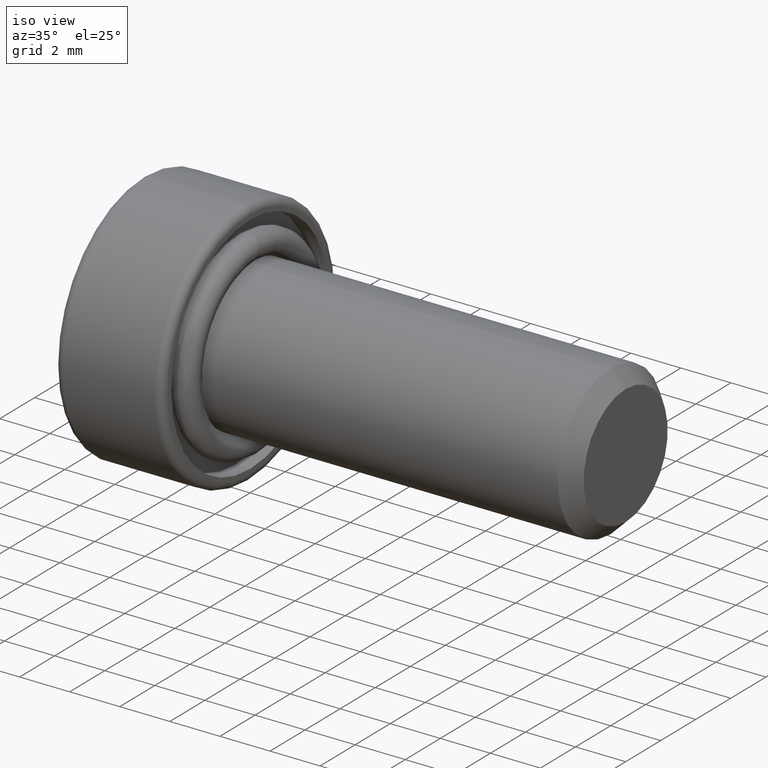
[diagram: clean part render]
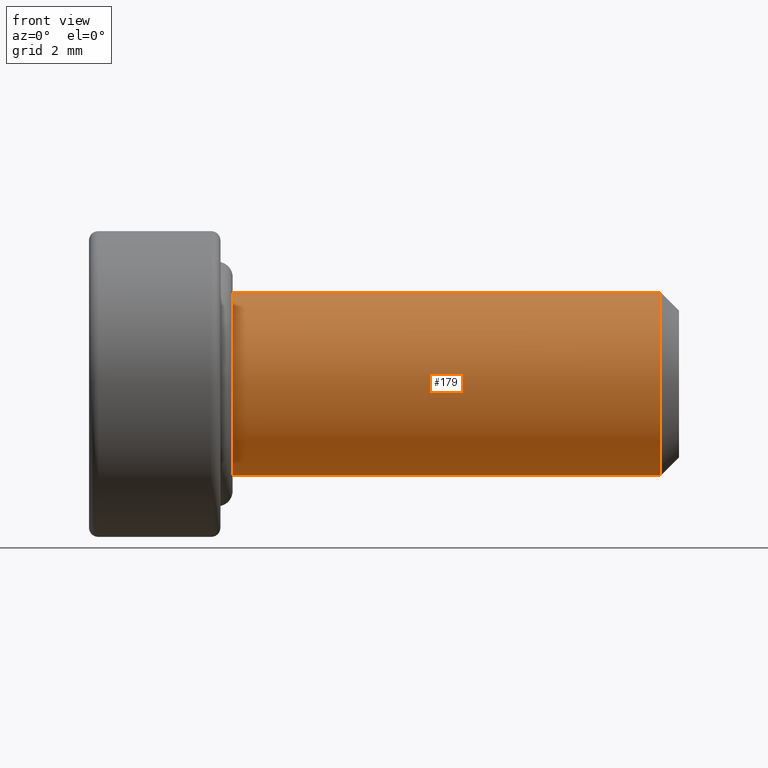
[diagram: tour spotlight — one face highlighted and labeled with its STEP entity id]
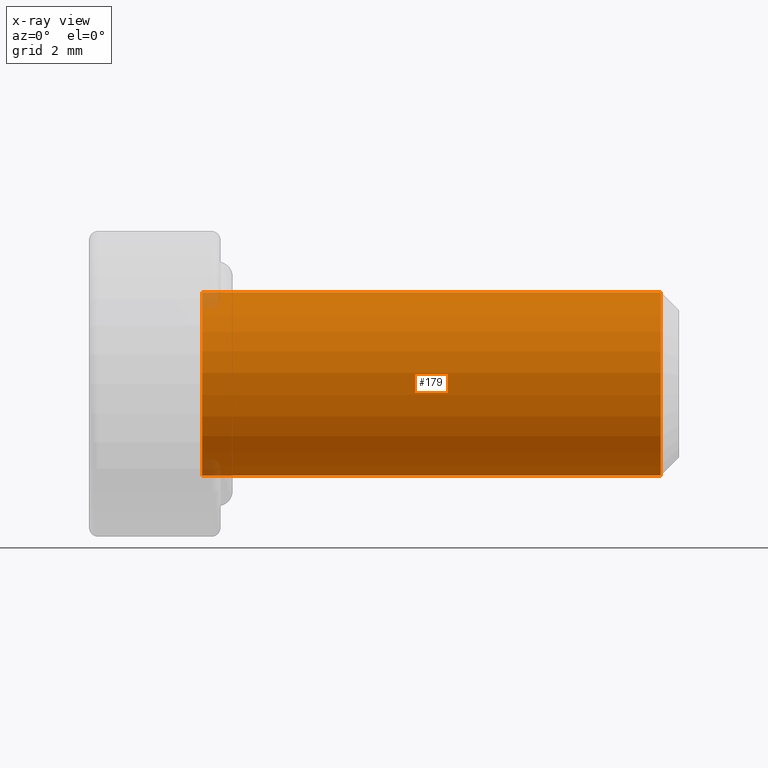
[diagram: x-ray of the same camera — body ghosted, this tour face saturated]
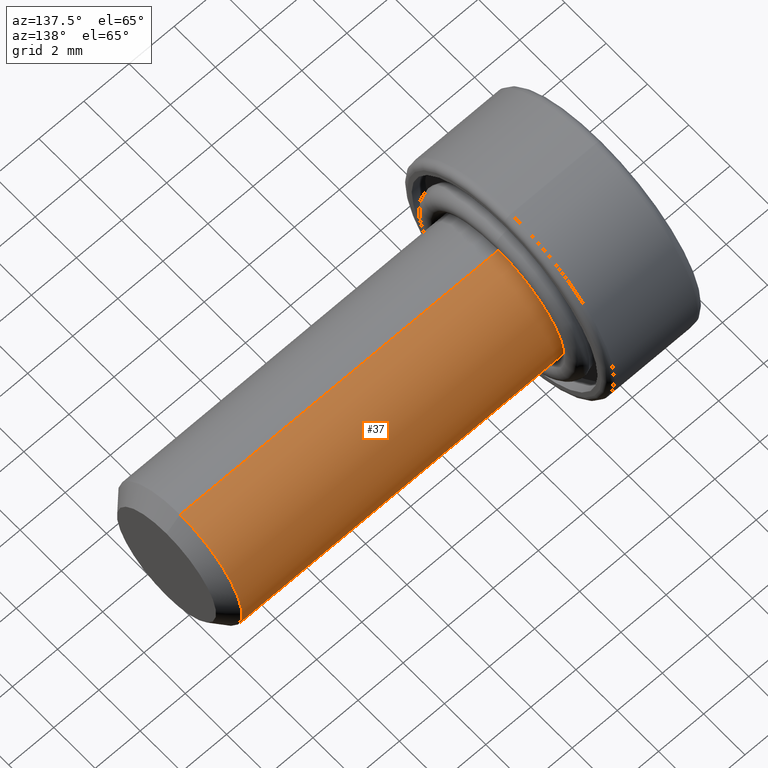
[diagram: tour spotlight — one face highlighted and labeled with its STEP entity id]
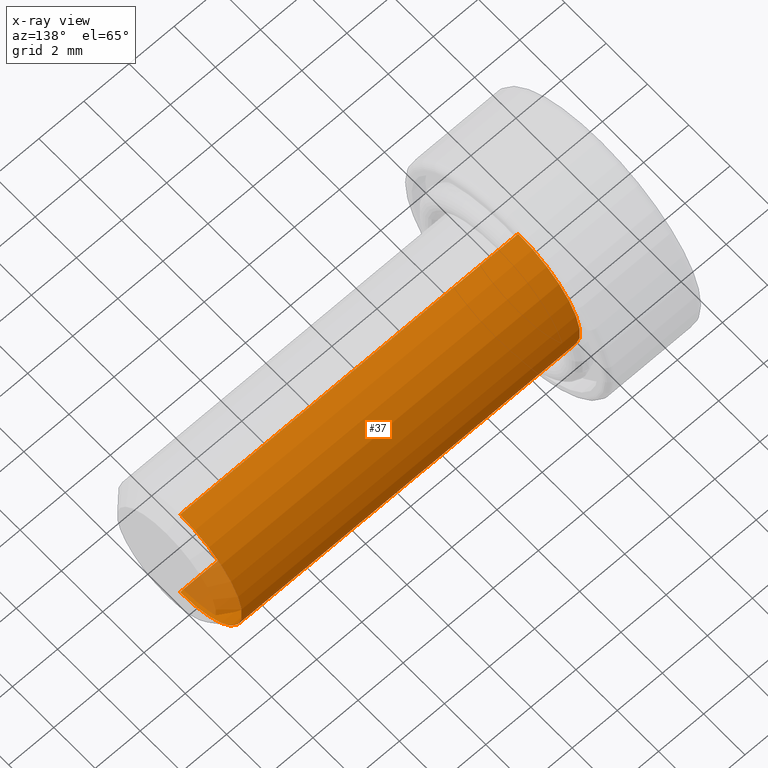
[diagram: x-ray of the same camera — body ghosted, this tour face saturated]
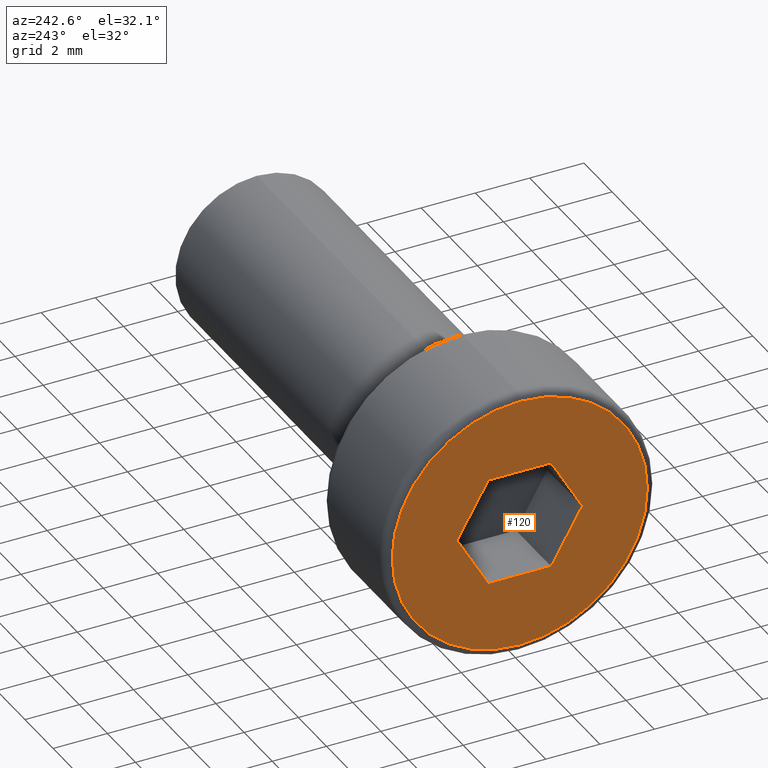
[diagram: tour spotlight — one face highlighted and labeled with its STEP entity id]
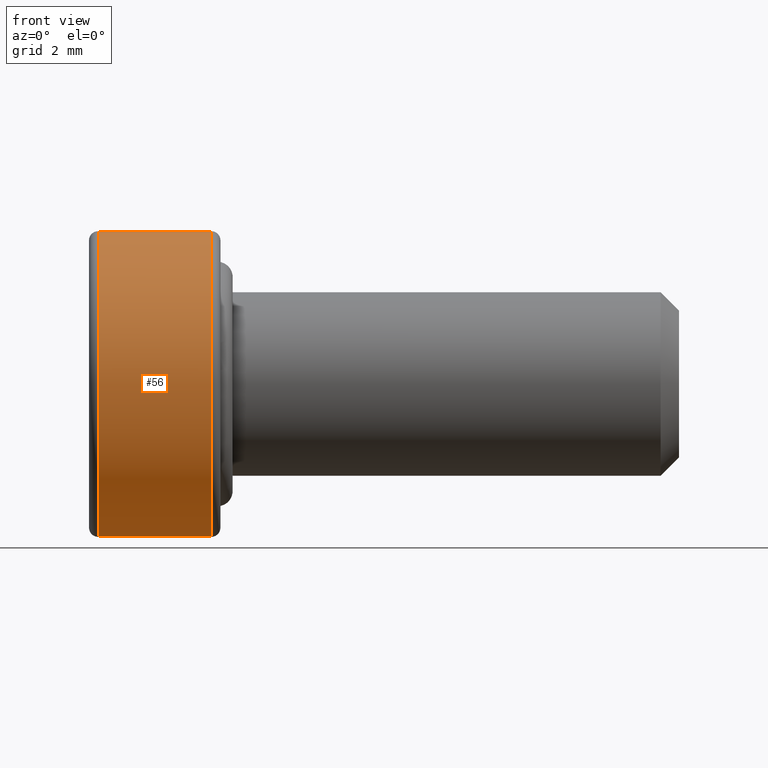
[diagram: tour spotlight — one face highlighted and labeled with its STEP entity id]
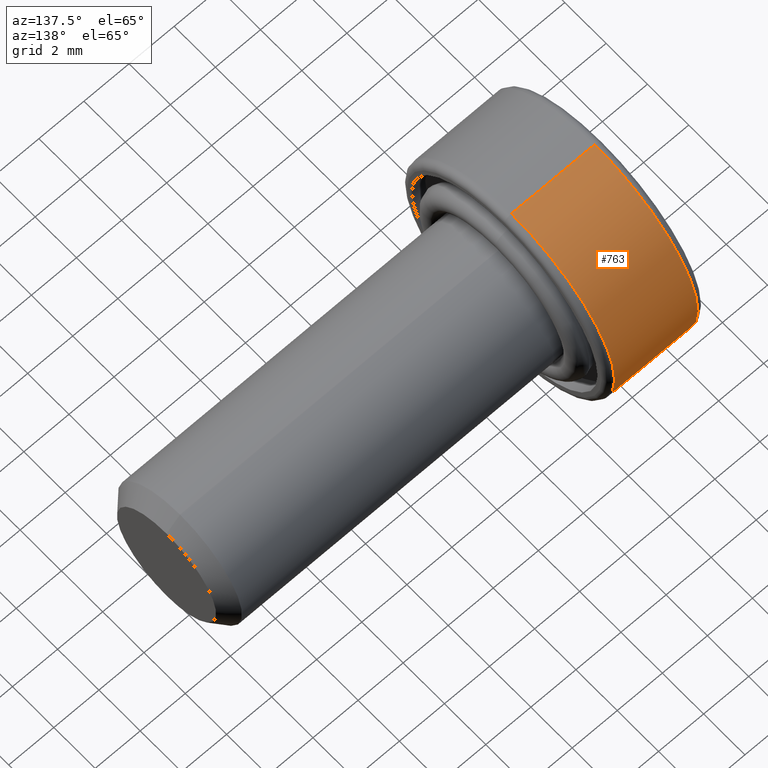
[diagram: tour spotlight — one face highlighted and labeled with its STEP entity id]
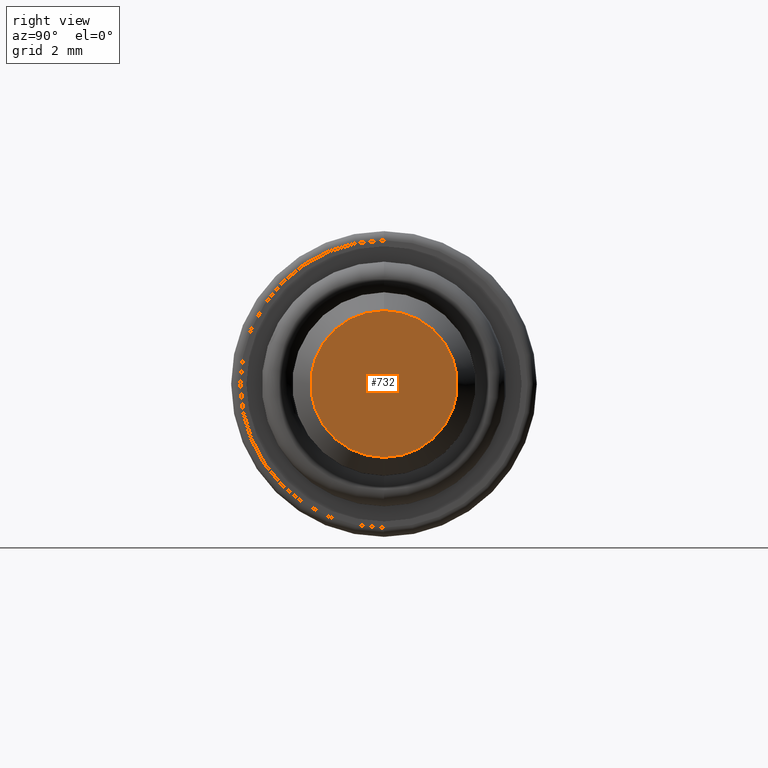
[diagram: tour spotlight — one face highlighted and labeled with its STEP entity id]
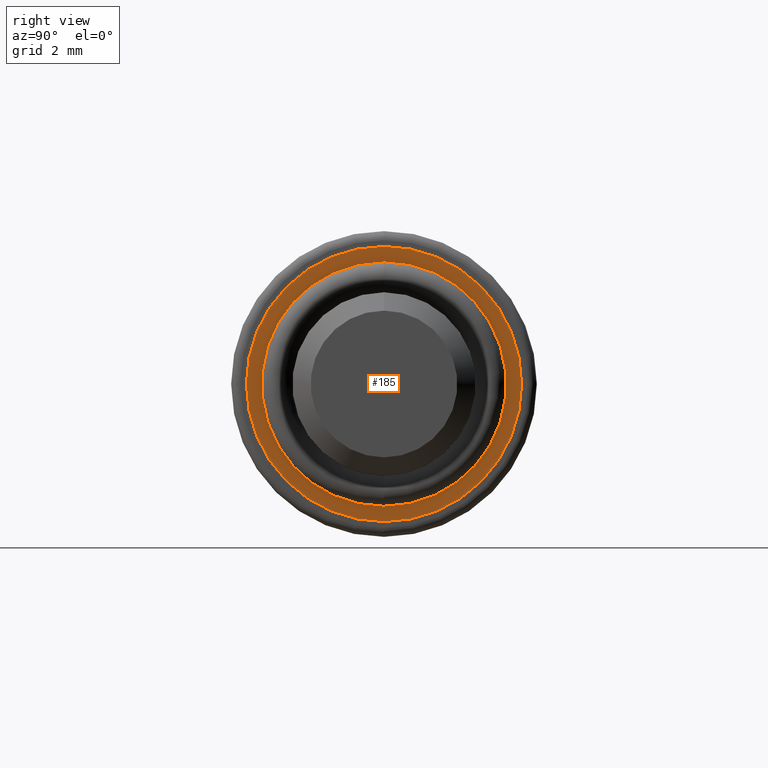
[diagram: tour spotlight — one face highlighted and labeled with its STEP entity id]
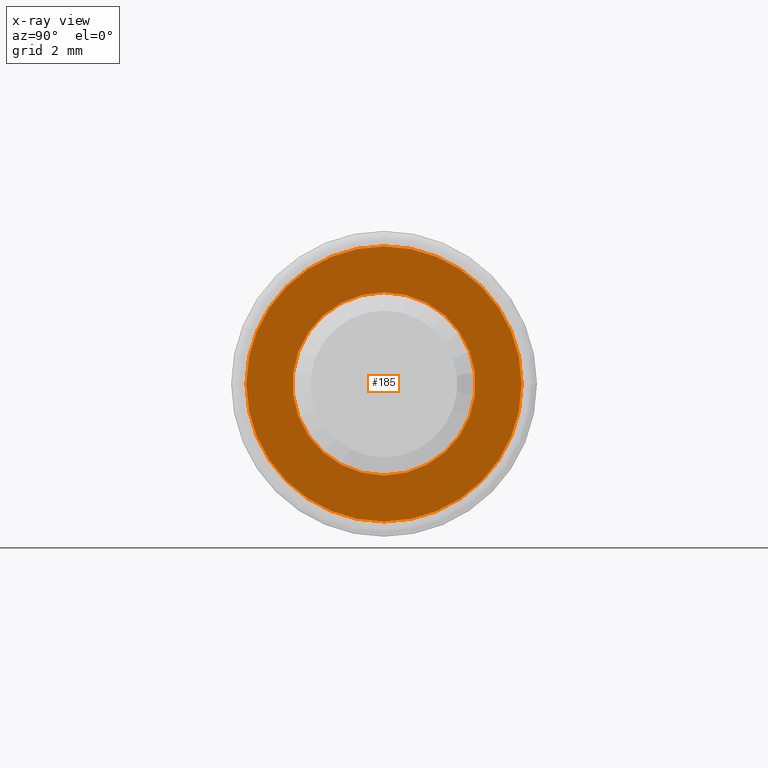
[diagram: x-ray of the same camera — body ghosted, this tour face saturated]
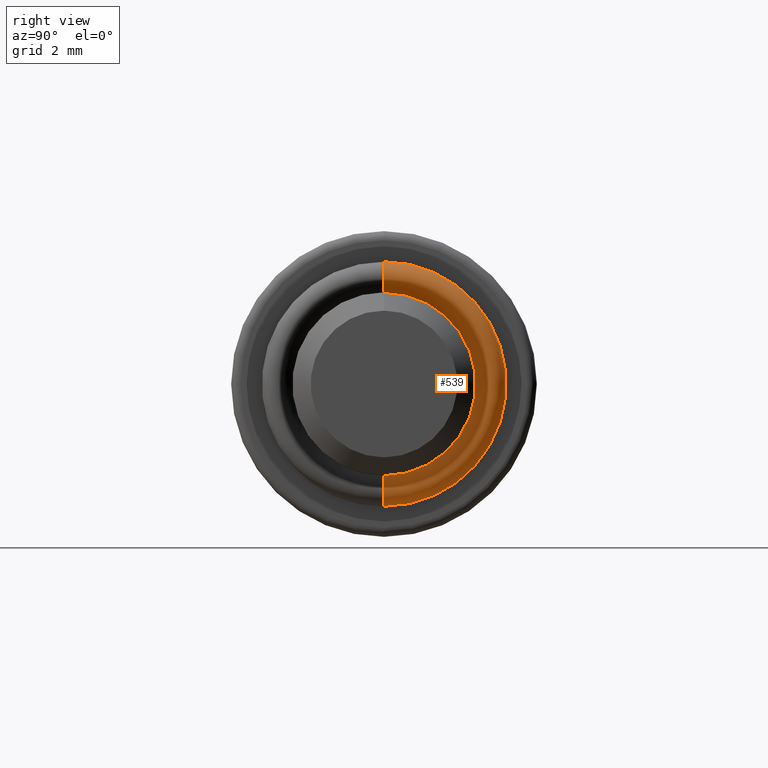
[diagram: tour spotlight — one face highlighted and labeled with its STEP entity id]
A machine part: a face-by-face anatomy tour. The part has 27 B-rep faces; the first image is the clean iso view, then the 8 largest visible faces are spotlighted one at a time (largest first), each with its STEP entity span.

Face 1 — front view, entity #179. An x-ray twin of the same camera follows (body ghosted, this face saturated) — the face is partly hidden behind the body. In plain terms, the highlighted cylindrical surface (partial cylindrical patch) has radius 3 mm, axis along (-1, -0, -0).
Definition (entity closure, byte-faithful):
#1 = DIRECTION ( 'NONE',  ( 1.000000000000000000, 0.0000000000000000000, 0.0000000000000000000 ) ) ;
#7 = DIRECTION ( 'NONE',  ( 0.0000000000000000000, 0.0000000000000000000, -1.000000000000000000 ) ) ;
#9 = CYLINDRICAL_SURFACE ( 'NONE', #13, 3.000000000000000400 ) ;
#13 = AXIS2_PLACEMENT_3D ( 'NONE', #324, #341, #750 ) ;
#90 = VERTEX_POINT ( 'NONE', #581 ) ;
#94 = CARTESIAN_POINT ( 'NONE',  ( 14.40000000000000000, 3.673940397442060400E-016, -3.000000000000000400 ) ) ;
#109 = EDGE_CURVE ( 'NONE', #708, #267, #547, .T. ) ;
#121 = DIRECTION ( 'NONE',  ( -1.000000000000000000, 0.0000000000000000000, 0.0000000000000000000 ) ) ;
#124 = ORIENTED_EDGE ( 'NONE', *, *, #109, .T. ) ;
#137 = DIRECTION ( 'NONE',  ( -1.000000000000000000, -0.0000000000000000000, -0.0000000000000000000 ) ) ;
#164 = ORIENTED_EDGE ( 'NONE', *, *, #488, .F. ) ;
#179 = ADVANCED_FACE ( 'NONE', ( #359 ), #9, .T. ) ;
#214 = VECTOR ( 'NONE', #137, 1000.000000000000000 ) ;
#267 = VERTEX_POINT ( 'NONE', #422 ) ;
#280 = CARTESIAN_POINT ( 'NONE',  ( 15.00000000000000000, 0.0000000000000000000, 3.000000000000000400 ) ) ;
#283 = CARTESIAN_POINT ( 'NONE',  ( 14.40000000000000000, 0.0000000000000000000, 0.0000000000000000000 ) ) ;
#311 = AXIS2_PLACEMENT_3D ( 'NONE', #771, #1, #382 ) ;
#324 = CARTESIAN_POINT ( 'NONE',  ( 15.00000000000000000, 0.0000000000000000000, 0.0000000000000000000 ) ) ;
#341 = DIRECTION ( 'NONE',  ( -1.000000000000000000, -0.0000000000000000000, -0.0000000000000000000 ) ) ;
#349 = VECTOR ( 'NONE', #355, 1000.000000000000000 ) ;
#355 = DIRECTION ( 'NONE',  ( -1.000000000000000000, -0.0000000000000000000, -0.0000000000000000000 ) ) ;
#359 = FACE_OUTER_BOUND ( 'NONE', #606, .T. ) ;
#382 = DIRECTION ( 'NONE',  ( 0.0000000000000000000, 0.0000000000000000000, -1.000000000000000000 ) ) ;
#422 = CARTESIAN_POINT ( 'NONE',  ( 14.40000000000000000, 0.0000000000000000000, 3.000000000000000400 ) ) ;
#426 = LINE ( 'NONE', #702, #214 ) ;
#458 = ORIENTED_EDGE ( 'NONE', *, *, #798, .T. ) ;
#488 = EDGE_CURVE ( 'NONE', #708, #90, #426, .T. ) ;
#501 = LINE ( 'NONE', #280, #349 ) ;
#509 = CARTESIAN_POINT ( 'NONE',  ( -0.5999999999999999800, 0.0000000000000000000, 3.000000000000000400 ) ) ;
#536 = AXIS2_PLACEMENT_3D ( 'NONE', #283, #121, #7 ) ;
#547 = CIRCLE ( 'NONE', #536, 3.000000000000000400 ) ;
#555 = CIRCLE ( 'NONE', #311, 3.000000000000000400 ) ;
#581 = CARTESIAN_POINT ( 'NONE',  ( -0.5999999999999999800, 3.673940397442060400E-016, -3.000000000000000400 ) ) ;
#606 = EDGE_LOOP ( 'NONE', ( #164, #124, #680, #458 ) ) ;
#680 = ORIENTED_EDGE ( 'NONE', *, *, #786, .T. ) ;
#702 = CARTESIAN_POINT ( 'NONE',  ( 15.00000000000000000, 3.673940397442060400E-016, -3.000000000000000400 ) ) ;
#708 = VERTEX_POINT ( 'NONE', #94 ) ;
#750 = DIRECTION ( 'NONE',  ( 0.0000000000000000000, 0.0000000000000000000, 1.000000000000000000 ) ) ;
#771 = CARTESIAN_POINT ( 'NONE',  ( -0.5999999999999999800, 0.0000000000000000000, 0.0000000000000000000 ) ) ;
#774 = VERTEX_POINT ( 'NONE', #509 ) ;
#786 = EDGE_CURVE ( 'NONE', #267, #774, #501, .T. ) ;
#798 = EDGE_CURVE ( 'NONE', #774, #90, #555, .T. ) ;

Face 2 — auxiliary view, entity #37. An x-ray twin of the same camera follows (body ghosted, this face saturated) — the face is partly hidden behind the body. In plain terms, the highlighted cylindrical surface (partial cylindrical patch) has radius 3 mm, axis along (-1, -0, -0).
Definition (entity closure, byte-faithful):
#16 = DIRECTION ( 'NONE',  ( 0.0000000000000000000, 0.0000000000000000000, 1.000000000000000000 ) ) ;
#37 = ADVANCED_FACE ( 'NONE', ( #799 ), #134, .T. ) ;
#71 = ORIENTED_EDGE ( 'NONE', *, *, #786, .F. ) ;
#74 = AXIS2_PLACEMENT_3D ( 'NONE', #152, #734, #16 ) ;
#90 = VERTEX_POINT ( 'NONE', #581 ) ;
#94 = CARTESIAN_POINT ( 'NONE',  ( 14.40000000000000000, 3.673940397442060400E-016, -3.000000000000000400 ) ) ;
#107 = ORIENTED_EDGE ( 'NONE', *, *, #488, .T. ) ;
#110 = EDGE_LOOP ( 'NONE', ( #198, #107, #370, #71 ) ) ;
#134 = CYLINDRICAL_SURFACE ( 'NONE', #74, 3.000000000000000400 ) ;
#137 = DIRECTION ( 'NONE',  ( -1.000000000000000000, -0.0000000000000000000, -0.0000000000000000000 ) ) ;
#152 = CARTESIAN_POINT ( 'NONE',  ( 15.00000000000000000, 0.0000000000000000000, 0.0000000000000000000 ) ) ;
#163 = AXIS2_PLACEMENT_3D ( 'NONE', #456, #711, #320 ) ;
#198 = ORIENTED_EDGE ( 'NONE', *, *, #400, .T. ) ;
#214 = VECTOR ( 'NONE', #137, 1000.000000000000000 ) ;
#254 = DIRECTION ( 'NONE',  ( 0.0000000000000000000, 0.0000000000000000000, -1.000000000000000000 ) ) ;
#267 = VERTEX_POINT ( 'NONE', #422 ) ;
#280 = CARTESIAN_POINT ( 'NONE',  ( 15.00000000000000000, 0.0000000000000000000, 3.000000000000000400 ) ) ;
#320 = DIRECTION ( 'NONE',  ( 0.0000000000000000000, 0.0000000000000000000, -1.000000000000000000 ) ) ;
#323 = DIRECTION ( 'NONE',  ( 1.000000000000000000, 0.0000000000000000000, 0.0000000000000000000 ) ) ;
#349 = VECTOR ( 'NONE', #355, 1000.000000000000000 ) ;
#355 = DIRECTION ( 'NONE',  ( -1.000000000000000000, -0.0000000000000000000, -0.0000000000000000000 ) ) ;
#370 = ORIENTED_EDGE ( 'NONE', *, *, #611, .T. ) ;
#400 = EDGE_CURVE ( 'NONE', #267, #708, #411, .T. ) ;
#411 = CIRCLE ( 'NONE', #163, 3.000000000000000400 ) ;
#422 = CARTESIAN_POINT ( 'NONE',  ( 14.40000000000000000, 0.0000000000000000000, 3.000000000000000400 ) ) ;
#426 = LINE ( 'NONE', #702, #214 ) ;
#456 = CARTESIAN_POINT ( 'NONE',  ( 14.40000000000000000, 0.0000000000000000000, 0.0000000000000000000 ) ) ;
#488 = EDGE_CURVE ( 'NONE', #708, #90, #426, .T. ) ;
#501 = LINE ( 'NONE', #280, #349 ) ;
#509 = CARTESIAN_POINT ( 'NONE',  ( -0.5999999999999999800, 0.0000000000000000000, 3.000000000000000400 ) ) ;
#535 = AXIS2_PLACEMENT_3D ( 'NONE', #653, #323, #254 ) ;
#581 = CARTESIAN_POINT ( 'NONE',  ( -0.5999999999999999800, 3.673940397442060400E-016, -3.000000000000000400 ) ) ;
#611 = EDGE_CURVE ( 'NONE', #90, #774, #796, .T. ) ;
#653 = CARTESIAN_POINT ( 'NONE',  ( -0.5999999999999999800, 0.0000000000000000000, 0.0000000000000000000 ) ) ;
#702 = CARTESIAN_POINT ( 'NONE',  ( 15.00000000000000000, 3.673940397442060400E-016, -3.000000000000000400 ) ) ;
#708 = VERTEX_POINT ( 'NONE', #94 ) ;
#711 = DIRECTION ( 'NONE',  ( -1.000000000000000000, 0.0000000000000000000, 0.0000000000000000000 ) ) ;
#734 = DIRECTION ( 'NONE',  ( -1.000000000000000000, -0.0000000000000000000, -0.0000000000000000000 ) ) ;
#774 = VERTEX_POINT ( 'NONE', #509 ) ;
#786 = EDGE_CURVE ( 'NONE', #267, #774, #501, .T. ) ;
#796 = CIRCLE ( 'NONE', #535, 3.000000000000000400 ) ;
#799 = FACE_OUTER_BOUND ( 'NONE', #110, .T. ) ;

Face 3 — auxiliary view, entity #120. In plain terms, the highlighted planar face has unit normal (1, 0, 0).
Definition (entity closure, byte-faithful):
#14 = VERTEX_POINT ( 'NONE', #270 ) ;
#19 = VECTOR ( 'NONE', #640, 1000.000000000000200 ) ;
#28 = DIRECTION ( 'NONE',  ( 0.0000000000000000000, 0.0000000000000000000, -1.000000000000000000 ) ) ;
#38 = LINE ( 'NONE', #567, #19 ) ;
#46 = ORIENTED_EDGE ( 'NONE', *, *, #731, .F. ) ;
#55 = VERTEX_POINT ( 'NONE', #686 ) ;
#67 = FACE_BOUND ( 'NONE', #787, .T. ) ;
#84 = DIRECTION ( 'NONE',  ( 0.0000000000000000000, 0.0000000000000000000, -1.000000000000000000 ) ) ;
#88 = VECTOR ( 'NONE', #265, 1000.000000000000100 ) ;
#106 = ORIENTED_EDGE ( 'NONE', *, *, #531, .F. ) ;
#120 = ADVANCED_FACE ( 'NONE', ( #67, #237 ), #623, .F. ) ;
#126 = CARTESIAN_POINT ( 'NONE',  ( -4.299999999999999800, -2.309401076758518000, 8.673617379884035500E-016 ) ) ;
#132 = AXIS2_PLACEMENT_3D ( 'NONE', #717, #220, #84 ) ;
#141 = CIRCLE ( 'NONE', #144, 4.700000000000000200 ) ;
#144 = AXIS2_PLACEMENT_3D ( 'NONE', #286, #343, #28 ) ;
#149 = ORIENTED_EDGE ( 'NONE', *, *, #157, .F. ) ;
#157 = EDGE_CURVE ( 'NONE', #401, #14, #571, .T. ) ;
#171 = VECTOR ( 'NONE', #297, 1000.000000000000000 ) ;
#213 = VERTEX_POINT ( 'NONE', #253 ) ;
#220 = DIRECTION ( 'NONE',  ( -1.000000000000000000, -0.0000000000000000000, -0.0000000000000000000 ) ) ;
#237 = FACE_OUTER_BOUND ( 'NONE', #397, .T. ) ;
#248 = LINE ( 'NONE', #596, #88 ) ;
#250 = VERTEX_POINT ( 'NONE', #628 ) ;
#253 = CARTESIAN_POINT ( 'NONE',  ( -4.299999999999999800, 2.309401076758518900, 8.673617379884035500E-016 ) ) ;
#265 = DIRECTION ( 'NONE',  ( -0.0000000000000000000, 0.4999999999999993300, 0.8660254037844389300 ) ) ;
#270 = CARTESIAN_POINT ( 'NONE',  ( -4.299999999999999800, -2.309401076758518000, 8.673617379884035500E-016 ) ) ;
#286 = CARTESIAN_POINT ( 'NONE',  ( -4.299999999999999800, 0.0000000000000000000, 0.0000000000000000000 ) ) ;
#297 = DIRECTION ( 'NONE',  ( -0.0000000000000000000, -1.000000000000000000, 3.755786496842872900E-016 ) ) ;
#301 = VERTEX_POINT ( 'NONE', #807 ) ;
#328 = CARTESIAN_POINT ( 'NONE',  ( -4.299999999999999800, -1.154700538379258300, -2.000000000000012900 ) ) ;
#343 = DIRECTION ( 'NONE',  ( -1.000000000000000000, -0.0000000000000000000, -0.0000000000000000000 ) ) ;
#348 = LINE ( 'NONE', #328, #171 ) ;
#362 = VECTOR ( 'NONE', #758, 1000.000000000000200 ) ;
#365 = EDGE_CURVE ( 'NONE', #14, #250, #248, .T. ) ;
#372 = DIRECTION ( 'NONE',  ( 0.0000000000000000000, 0.0000000000000000000, -1.000000000000000000 ) ) ;
#389 = CARTESIAN_POINT ( 'NONE',  ( -4.299999999999999800, 1.154700538379259000, 2.000000000000013300 ) ) ;
#397 = EDGE_LOOP ( 'NONE', ( #802, #803 ) ) ;
#399 = CARTESIAN_POINT ( 'NONE',  ( -4.299999999999999800, -1.154700538379258100, -2.000000000000012900 ) ) ;
#401 = VERTEX_POINT ( 'NONE', #399 ) ;
#427 = CIRCLE ( 'NONE', #132, 4.700000000000000200 ) ;
#441 = ORIENTED_EDGE ( 'NONE', *, *, #504, .F. ) ;
#444 = CARTESIAN_POINT ( 'NONE',  ( -4.299999999999999800, 1.154700538379259000, 2.000000000000013300 ) ) ;
#453 = LINE ( 'NONE', #444, #794 ) ;
#464 = ORIENTED_EDGE ( 'NONE', *, *, #365, .F. ) ;
#504 = EDGE_CURVE ( 'NONE', #213, #55, #679, .T. ) ;
#506 = DIRECTION ( 'NONE',  ( 1.000000000000000000, 0.0000000000000000000, 0.0000000000000000000 ) ) ;
#531 = EDGE_CURVE ( 'NONE', #706, #213, #38, .T. ) ;
#533 = VECTOR ( 'NONE', #641, 1000.000000000000200 ) ;
#567 = CARTESIAN_POINT ( 'NONE',  ( -4.299999999999999800, 2.309401076758518900, 8.673617379884035500E-016 ) ) ;
#570 = EDGE_CURVE ( 'NONE', #55, #401, #348, .T. ) ;
#571 = LINE ( 'NONE', #126, #533 ) ;
#573 = CARTESIAN_POINT ( 'NONE',  ( -4.299999999999999800, 5.939536975864663000E-016, 4.700000000000000200 ) ) ;
#596 = CARTESIAN_POINT ( 'NONE',  ( -4.299999999999999800, -1.154700538379260100, 2.000000000000015100 ) ) ;
#598 = VERTEX_POINT ( 'NONE', #573 ) ;
#623 = PLANE ( 'NONE',  #664 ) ;
#628 = CARTESIAN_POINT ( 'NONE',  ( -4.299999999999999800, -1.154700538379260100, 2.000000000000015100 ) ) ;
#640 = DIRECTION ( 'NONE',  ( -0.0000000000000000000, 0.5000000000000003300, -0.8660254037844383700 ) ) ;
#641 = DIRECTION ( 'NONE',  ( -0.0000000000000000000, -0.5000000000000000000, 0.8660254037844386000 ) ) ;
#660 = DIRECTION ( 'NONE',  ( -0.0000000000000000000, 1.000000000000000000, -7.511572993685745900E-016 ) ) ;
#664 = AXIS2_PLACEMENT_3D ( 'NONE', #819, #506, #372 ) ;
#679 = LINE ( 'NONE', #780, #362 ) ;
#686 = CARTESIAN_POINT ( 'NONE',  ( -4.299999999999999800, 1.154700538379260600, -2.000000000000013800 ) ) ;
#690 = EDGE_CURVE ( 'NONE', #598, #301, #141, .T. ) ;
#694 = ORIENTED_EDGE ( 'NONE', *, *, #570, .F. ) ;
#706 = VERTEX_POINT ( 'NONE', #389 ) ;
#717 = CARTESIAN_POINT ( 'NONE',  ( -4.299999999999999800, 0.0000000000000000000, 0.0000000000000000000 ) ) ;
#731 = EDGE_CURVE ( 'NONE', #250, #706, #453, .T. ) ;
#751 = EDGE_CURVE ( 'NONE', #301, #598, #427, .T. ) ;
#758 = DIRECTION ( 'NONE',  ( -0.0000000000000000000, -0.4999999999999994400, -0.8660254037844389300 ) ) ;
#780 = CARTESIAN_POINT ( 'NONE',  ( -4.299999999999999800, 1.154700538379260600, -2.000000000000013800 ) ) ;
#787 = EDGE_LOOP ( 'NONE', ( #149, #694, #441, #106, #46, #464 ) ) ;
#794 = VECTOR ( 'NONE', #660, 1000.000000000000000 ) ;
#802 = ORIENTED_EDGE ( 'NONE', *, *, #751, .T. ) ;
#803 = ORIENTED_EDGE ( 'NONE', *, *, #690, .T. ) ;
#807 = CARTESIAN_POINT ( 'NONE',  ( -4.299999999999999800, 0.0000000000000000000, -4.700000000000000200 ) ) ;
#819 = CARTESIAN_POINT ( 'NONE',  ( -4.299999999999999800, 0.0000000000000000000, 0.0000000000000000000 ) ) ;

Face 4 — front view, entity #56. In plain terms, the highlighted cylindrical surface (partial cylindrical patch) has radius 5 mm, axis along (1, 0, 0).
Definition (entity closure, byte-faithful):
#27 = ORIENTED_EDGE ( 'NONE', *, *, #330, .F. ) ;
#56 = ADVANCED_FACE ( 'NONE', ( #609 ), #436, .T. ) ;
#64 = CARTESIAN_POINT ( 'NONE',  ( -4.299999999999999800, 6.123233995736765300E-016, 5.000000000000000000 ) ) ;
#99 = VERTEX_POINT ( 'NONE', #612 ) ;
#102 = AXIS2_PLACEMENT_3D ( 'NONE', #430, #266, #489 ) ;
#122 = LINE ( 'NONE', #64, #600 ) ;
#123 = VECTOR ( 'NONE', #147, 1000.000000000000000 ) ;
#131 = EDGE_LOOP ( 'NONE', ( #27, #610, #603, #278 ) ) ;
#140 = CARTESIAN_POINT ( 'NONE',  ( -4.299999999999999800, 0.0000000000000000000, -5.000000000000000000 ) ) ;
#147 = DIRECTION ( 'NONE',  ( 1.000000000000000000, 0.0000000000000000000, 0.0000000000000000000 ) ) ;
#188 = VERTEX_POINT ( 'NONE', #257 ) ;
#190 = EDGE_CURVE ( 'NONE', #454, #451, #662, .T. ) ;
#203 = AXIS2_PLACEMENT_3D ( 'NONE', #381, #462, #636 ) ;
#211 = CARTESIAN_POINT ( 'NONE',  ( -0.2999999999999999300, 6.123233995736765300E-016, 5.000000000000000000 ) ) ;
#257 = CARTESIAN_POINT ( 'NONE',  ( -4.000000000000000000, 6.123233995736765300E-016, 5.000000000000000000 ) ) ;
#266 = DIRECTION ( 'NONE',  ( -1.000000000000000000, -0.0000000000000000000, -0.0000000000000000000 ) ) ;
#278 = ORIENTED_EDGE ( 'NONE', *, *, #190, .T. ) ;
#304 = LINE ( 'NONE', #140, #123 ) ;
#330 = EDGE_CURVE ( 'NONE', #188, #451, #122, .T. ) ;
#381 = CARTESIAN_POINT ( 'NONE',  ( -4.299999999999999800, 0.0000000000000000000, 0.0000000000000000000 ) ) ;
#386 = CARTESIAN_POINT ( 'NONE',  ( -4.000000000000000000, 0.0000000000000000000, 0.0000000000000000000 ) ) ;
#390 = DIRECTION ( 'NONE',  ( 0.0000000000000000000, 0.0000000000000000000, -1.000000000000000000 ) ) ;
#430 = CARTESIAN_POINT ( 'NONE',  ( -0.2999999999999999300, 0.0000000000000000000, 0.0000000000000000000 ) ) ;
#436 = CYLINDRICAL_SURFACE ( 'NONE', #203, 5.000000000000000000 ) ;
#451 = VERTEX_POINT ( 'NONE', #211 ) ;
#454 = VERTEX_POINT ( 'NONE', #470 ) ;
#462 = DIRECTION ( 'NONE',  ( 1.000000000000000000, 0.0000000000000000000, 0.0000000000000000000 ) ) ;
#468 = CIRCLE ( 'NONE', #577, 5.000000000000000000 ) ;
#470 = CARTESIAN_POINT ( 'NONE',  ( -0.2999999999999999300, 0.0000000000000000000, -5.000000000000000000 ) ) ;
#489 = DIRECTION ( 'NONE',  ( 0.0000000000000000000, 0.0000000000000000000, -1.000000000000000000 ) ) ;
#514 = DIRECTION ( 'NONE',  ( 1.000000000000000000, 0.0000000000000000000, 0.0000000000000000000 ) ) ;
#577 = AXIS2_PLACEMENT_3D ( 'NONE', #386, #713, #390 ) ;
#600 = VECTOR ( 'NONE', #514, 1000.000000000000000 ) ;
#603 = ORIENTED_EDGE ( 'NONE', *, *, #710, .T. ) ;
#609 = FACE_OUTER_BOUND ( 'NONE', #131, .T. ) ;
#610 = ORIENTED_EDGE ( 'NONE', *, *, #624, .T. ) ;
#612 = CARTESIAN_POINT ( 'NONE',  ( -4.000000000000000000, 0.0000000000000000000, -5.000000000000000000 ) ) ;
#624 = EDGE_CURVE ( 'NONE', #188, #99, #468, .T. ) ;
#636 = DIRECTION ( 'NONE',  ( 0.0000000000000000000, 0.0000000000000000000, -1.000000000000000000 ) ) ;
#662 = CIRCLE ( 'NONE', #102, 5.000000000000000000 ) ;
#710 = EDGE_CURVE ( 'NONE', #99, #454, #304, .T. ) ;
#713 = DIRECTION ( 'NONE',  ( 1.000000000000000000, 0.0000000000000000000, 0.0000000000000000000 ) ) ;

Face 5 — auxiliary view, entity #763. In plain terms, the highlighted cylindrical surface (partial cylindrical patch) has radius 5 mm, axis along (1, 0, 0).
Definition (entity closure, byte-faithful):
#25 = EDGE_CURVE ( 'NONE', #451, #454, #326, .T. ) ;
#40 = ORIENTED_EDGE ( 'NONE', *, *, #710, .F. ) ;
#64 = CARTESIAN_POINT ( 'NONE',  ( -4.299999999999999800, 6.123233995736765300E-016, 5.000000000000000000 ) ) ;
#99 = VERTEX_POINT ( 'NONE', #612 ) ;
#122 = LINE ( 'NONE', #64, #600 ) ;
#123 = VECTOR ( 'NONE', #147, 1000.000000000000000 ) ;
#140 = CARTESIAN_POINT ( 'NONE',  ( -4.299999999999999800, 0.0000000000000000000, -5.000000000000000000 ) ) ;
#147 = DIRECTION ( 'NONE',  ( 1.000000000000000000, 0.0000000000000000000, 0.0000000000000000000 ) ) ;
#156 = DIRECTION ( 'NONE',  ( 1.000000000000000000, 0.0000000000000000000, 0.0000000000000000000 ) ) ;
#165 = ORIENTED_EDGE ( 'NONE', *, *, #440, .T. ) ;
#188 = VERTEX_POINT ( 'NONE', #257 ) ;
#210 = DIRECTION ( 'NONE',  ( 0.0000000000000000000, 0.0000000000000000000, -1.000000000000000000 ) ) ;
#211 = CARTESIAN_POINT ( 'NONE',  ( -0.2999999999999999300, 6.123233995736765300E-016, 5.000000000000000000 ) ) ;
#217 = DIRECTION ( 'NONE',  ( 1.000000000000000000, 0.0000000000000000000, 0.0000000000000000000 ) ) ;
#241 = AXIS2_PLACEMENT_3D ( 'NONE', #510, #217, #753 ) ;
#245 = DIRECTION ( 'NONE',  ( 0.0000000000000000000, 0.0000000000000000000, -1.000000000000000000 ) ) ;
#257 = CARTESIAN_POINT ( 'NONE',  ( -4.000000000000000000, 6.123233995736765300E-016, 5.000000000000000000 ) ) ;
#271 = CARTESIAN_POINT ( 'NONE',  ( -4.299999999999999800, 0.0000000000000000000, 0.0000000000000000000 ) ) ;
#304 = LINE ( 'NONE', #140, #123 ) ;
#326 = CIRCLE ( 'NONE', #716, 5.000000000000000000 ) ;
#330 = EDGE_CURVE ( 'NONE', #188, #451, #122, .T. ) ;
#354 = AXIS2_PLACEMENT_3D ( 'NONE', #271, #156, #210 ) ;
#391 = CIRCLE ( 'NONE', #241, 5.000000000000000000 ) ;
#440 = EDGE_CURVE ( 'NONE', #99, #188, #391, .T. ) ;
#451 = VERTEX_POINT ( 'NONE', #211 ) ;
#454 = VERTEX_POINT ( 'NONE', #470 ) ;
#470 = CARTESIAN_POINT ( 'NONE',  ( -0.2999999999999999300, 0.0000000000000000000, -5.000000000000000000 ) ) ;
#510 = CARTESIAN_POINT ( 'NONE',  ( -4.000000000000000000, 0.0000000000000000000, 0.0000000000000000000 ) ) ;
#512 = DIRECTION ( 'NONE',  ( -1.000000000000000000, -0.0000000000000000000, -0.0000000000000000000 ) ) ;
#514 = DIRECTION ( 'NONE',  ( 1.000000000000000000, 0.0000000000000000000, 0.0000000000000000000 ) ) ;
#559 = ORIENTED_EDGE ( 'NONE', *, *, #25, .T. ) ;
#580 = FACE_OUTER_BOUND ( 'NONE', #705, .T. ) ;
#600 = VECTOR ( 'NONE', #514, 1000.000000000000000 ) ;
#612 = CARTESIAN_POINT ( 'NONE',  ( -4.000000000000000000, 0.0000000000000000000, -5.000000000000000000 ) ) ;
#696 = ORIENTED_EDGE ( 'NONE', *, *, #330, .T. ) ;
#705 = EDGE_LOOP ( 'NONE', ( #165, #696, #559, #40 ) ) ;
#710 = EDGE_CURVE ( 'NONE', #99, #454, #304, .T. ) ;
#716 = AXIS2_PLACEMENT_3D ( 'NONE', #748, #512, #245 ) ;
#725 = CYLINDRICAL_SURFACE ( 'NONE', #354, 5.000000000000000000 ) ;
#748 = CARTESIAN_POINT ( 'NONE',  ( -0.2999999999999999300, 0.0000000000000000000, 0.0000000000000000000 ) ) ;
#753 = DIRECTION ( 'NONE',  ( 0.0000000000000000000, 0.0000000000000000000, -1.000000000000000000 ) ) ;
#763 = ADVANCED_FACE ( 'NONE', ( #580 ), #725, .T. ) ;

Face 6 — right view, entity #732. In plain terms, the highlighted planar face has unit normal (1, 0, 0).
Definition (entity closure, byte-faithful):
#5 = PLANE ( 'NONE',  #93 ) ;
#41 = EDGE_LOOP ( 'NONE', ( #135, #375 ) ) ;
#59 = DIRECTION ( 'NONE',  ( 0.0000000000000000000, 0.0000000000000000000, -1.000000000000000000 ) ) ;
#68 = CARTESIAN_POINT ( 'NONE',  ( 15.00000000000000000, 0.0000000000000000000, 0.0000000000000000000 ) ) ;
#76 = DIRECTION ( 'NONE',  ( 0.0000000000000000000, 0.0000000000000000000, -1.000000000000000000 ) ) ;
#93 = AXIS2_PLACEMENT_3D ( 'NONE', #652, #517, #59 ) ;
#104 = FACE_OUTER_BOUND ( 'NONE', #41, .T. ) ;
#135 = ORIENTED_EDGE ( 'NONE', *, *, #659, .T. ) ;
#199 = VERTEX_POINT ( 'NONE', #618 ) ;
#202 = AXIS2_PLACEMENT_3D ( 'NONE', #499, #465, #76 ) ;
#251 = DIRECTION ( 'NONE',  ( 0.0000000000000000000, 0.0000000000000000000, -1.000000000000000000 ) ) ;
#289 = CIRCLE ( 'NONE', #663, 2.400000000000003000 ) ;
#375 = ORIENTED_EDGE ( 'NONE', *, *, #414, .T. ) ;
#414 = EDGE_CURVE ( 'NONE', #733, #199, #554, .T. ) ;
#465 = DIRECTION ( 'NONE',  ( 1.000000000000000000, 0.0000000000000000000, 0.0000000000000000000 ) ) ;
#499 = CARTESIAN_POINT ( 'NONE',  ( 15.00000000000000000, 0.0000000000000000000, 0.0000000000000000000 ) ) ;
#517 = DIRECTION ( 'NONE',  ( 1.000000000000000000, 0.0000000000000000000, 0.0000000000000000000 ) ) ;
#518 = DIRECTION ( 'NONE',  ( 1.000000000000000000, 0.0000000000000000000, 0.0000000000000000000 ) ) ;
#554 = CIRCLE ( 'NONE', #202, 2.400000000000003000 ) ;
#618 = CARTESIAN_POINT ( 'NONE',  ( 15.00000000000000000, 0.0000000000000000000, 2.400000000000003000 ) ) ;
#652 = CARTESIAN_POINT ( 'NONE',  ( 15.00000000000000000, 0.0000000000000000000, 0.0000000000000000000 ) ) ;
#659 = EDGE_CURVE ( 'NONE', #199, #733, #289, .T. ) ;
#663 = AXIS2_PLACEMENT_3D ( 'NONE', #68, #518, #251 ) ;
#689 = CARTESIAN_POINT ( 'NONE',  ( 15.00000000000000000, 3.306546357697855700E-016, -2.400000000000003000 ) ) ;
#732 = ADVANCED_FACE ( 'NONE', ( #104 ), #5, .T. ) ;
#733 = VERTEX_POINT ( 'NONE', #689 ) ;

Face 7 — right view, entity #185. An x-ray twin of the same camera follows (body ghosted, this face saturated) — the face is partly hidden behind the body. In plain terms, the highlighted planar face has unit normal (1, 0, 0).
Definition (entity closure, byte-faithful):
#1 = DIRECTION ( 'NONE',  ( 1.000000000000000000, 0.0000000000000000000, 0.0000000000000000000 ) ) ;
#8 = CARTESIAN_POINT ( 'NONE',  ( -0.5999999999999999800, 0.0000000000000000000, 0.0000000000000000000 ) ) ;
#23 = EDGE_LOOP ( 'NONE', ( #394, #602 ) ) ;
#32 = AXIS2_PLACEMENT_3D ( 'NONE', #8, #192, #392 ) ;
#42 = VERTEX_POINT ( 'NONE', #424 ) ;
#52 = PLANE ( 'NONE',  #145 ) ;
#61 = DIRECTION ( 'NONE',  ( 0.0000000000000000000, 0.0000000000000000000, -1.000000000000000000 ) ) ;
#70 = CARTESIAN_POINT ( 'NONE',  ( -0.5999999999999999800, 0.0000000000000000000, 0.0000000000000000000 ) ) ;
#90 = VERTEX_POINT ( 'NONE', #581 ) ;
#145 = AXIS2_PLACEMENT_3D ( 'NONE', #615, #193, #815 ) ;
#167 = CIRCLE ( 'NONE', #227, 4.500000000000000000 ) ;
#180 = FACE_OUTER_BOUND ( 'NONE', #23, .T. ) ;
#185 = ADVANCED_FACE ( 'NONE', ( #366, #180 ), #52, .T. ) ;
#192 = DIRECTION ( 'NONE',  ( 1.000000000000000000, 0.0000000000000000000, 0.0000000000000000000 ) ) ;
#193 = DIRECTION ( 'NONE',  ( 1.000000000000000000, 0.0000000000000000000, 0.0000000000000000000 ) ) ;
#227 = AXIS2_PLACEMENT_3D ( 'NONE', #70, #457, #61 ) ;
#231 = EDGE_CURVE ( 'NONE', #42, #808, #167, .T. ) ;
#254 = DIRECTION ( 'NONE',  ( 0.0000000000000000000, 0.0000000000000000000, -1.000000000000000000 ) ) ;
#311 = AXIS2_PLACEMENT_3D ( 'NONE', #771, #1, #382 ) ;
#323 = DIRECTION ( 'NONE',  ( 1.000000000000000000, 0.0000000000000000000, 0.0000000000000000000 ) ) ;
#366 = FACE_BOUND ( 'NONE', #607, .T. ) ;
#376 = EDGE_CURVE ( 'NONE', #808, #42, #579, .T. ) ;
#382 = DIRECTION ( 'NONE',  ( 0.0000000000000000000, 0.0000000000000000000, -1.000000000000000000 ) ) ;
#392 = DIRECTION ( 'NONE',  ( 0.0000000000000000000, 0.0000000000000000000, -1.000000000000000000 ) ) ;
#394 = ORIENTED_EDGE ( 'NONE', *, *, #376, .T. ) ;
#424 = CARTESIAN_POINT ( 'NONE',  ( -0.5999999999999999800, 5.510910596163088600E-016, 4.500000000000000000 ) ) ;
#457 = DIRECTION ( 'NONE',  ( 1.000000000000000000, 0.0000000000000000000, 0.0000000000000000000 ) ) ;
#509 = CARTESIAN_POINT ( 'NONE',  ( -0.5999999999999999800, 0.0000000000000000000, 3.000000000000000400 ) ) ;
#535 = AXIS2_PLACEMENT_3D ( 'NONE', #653, #323, #254 ) ;
#555 = CIRCLE ( 'NONE', #311, 3.000000000000000400 ) ;
#579 = CIRCLE ( 'NONE', #32, 4.500000000000000000 ) ;
#581 = CARTESIAN_POINT ( 'NONE',  ( -0.5999999999999999800, 3.673940397442060400E-016, -3.000000000000000400 ) ) ;
#594 = CARTESIAN_POINT ( 'NONE',  ( -0.5999999999999999800, 0.0000000000000000000, -4.500000000000000000 ) ) ;
#602 = ORIENTED_EDGE ( 'NONE', *, *, #231, .T. ) ;
#604 = ORIENTED_EDGE ( 'NONE', *, *, #611, .F. ) ;
#607 = EDGE_LOOP ( 'NONE', ( #655, #604 ) ) ;
#611 = EDGE_CURVE ( 'NONE', #90, #774, #796, .T. ) ;
#615 = CARTESIAN_POINT ( 'NONE',  ( -0.5999999999999999800, 0.0000000000000000000, 0.0000000000000000000 ) ) ;
#653 = CARTESIAN_POINT ( 'NONE',  ( -0.5999999999999999800, 0.0000000000000000000, 0.0000000000000000000 ) ) ;
#655 = ORIENTED_EDGE ( 'NONE', *, *, #798, .F. ) ;
#771 = CARTESIAN_POINT ( 'NONE',  ( -0.5999999999999999800, 0.0000000000000000000, 0.0000000000000000000 ) ) ;
#774 = VERTEX_POINT ( 'NONE', #509 ) ;
#796 = CIRCLE ( 'NONE', #535, 3.000000000000000400 ) ;
#798 = EDGE_CURVE ( 'NONE', #774, #90, #555, .T. ) ;
#808 = VERTEX_POINT ( 'NONE', #594 ) ;
#815 = DIRECTION ( 'NONE',  ( 0.0000000000000000000, 0.0000000000000000000, -1.000000000000000000 ) ) ;

Face 8 — right view, entity #539. In plain terms, the highlighted toroidal blend (fillet) surface has major radius 3.5 mm and minor (blend) radius 0.5 mm.
Definition (entity closure, byte-faithful):
#2 = EDGE_CURVE ( 'NONE', #225, #95, #173, .T. ) ;
#11 = CARTESIAN_POINT ( 'NONE',  ( -0.1000000000000000100, 0.0000000000000000000, 0.0000000000000000000 ) ) ;
#18 = ORIENTED_EDGE ( 'NONE', *, *, #398, .F. ) ;
#21 = DIRECTION ( 'NONE',  ( 1.000000000000000000, -0.0000000000000000000, -0.0000000000000000000 ) ) ;
#34 = DIRECTION ( 'NONE',  ( 0.0000000000000000000, 0.0000000000000000000, -1.000000000000000000 ) ) ;
#95 = VERTEX_POINT ( 'NONE', #369 ) ;
#108 = EDGE_CURVE ( 'NONE', #160, #225, #714, .T. ) ;
#117 = AXIS2_PLACEMENT_3D ( 'NONE', #784, #281, #356 ) ;
#160 = VERTEX_POINT ( 'NONE', #379 ) ;
#173 = CIRCLE ( 'NONE', #672, 0.5000000000000004400 ) ;
#178 = DIRECTION ( 'NONE',  ( 0.0000000000000000000, 1.000000000000000000, -1.224646799147353200E-016 ) ) ;
#196 = DIRECTION ( 'NONE',  ( -0.0000000000000000000, -1.000000000000000000, -0.0000000000000000000 ) ) ;
#218 = VERTEX_POINT ( 'NONE', #425 ) ;
#225 = VERTEX_POINT ( 'NONE', #575 ) ;
#281 = DIRECTION ( 'NONE',  ( 1.000000000000000000, -0.0000000000000000000, -0.0000000000000000000 ) ) ;
#356 = DIRECTION ( 'NONE',  ( 0.0000000000000000000, 0.0000000000000000000, -1.000000000000000000 ) ) ;
#369 = CARTESIAN_POINT ( 'NONE',  ( -0.1000000000000000700, 3.673940397442059400E-016, 2.999999999999999600 ) ) ;
#379 = CARTESIAN_POINT ( 'NONE',  ( -0.1000000000000000100, 0.0000000000000000000, -4.000000000000000000 ) ) ;
#398 = EDGE_CURVE ( 'NONE', #218, #95, #722, .T. ) ;
#409 = DIRECTION ( 'NONE',  ( 0.0000000000000000000, 1.224646799147352500E-016, 1.000000000000000000 ) ) ;
#425 = CARTESIAN_POINT ( 'NONE',  ( -0.1000000000000000700, 0.0000000000000000000, -2.999999999999999600 ) ) ;
#432 = DIRECTION ( 'NONE',  ( 1.000000000000000000, -0.0000000000000000000, -0.0000000000000000000 ) ) ;
#434 = DIRECTION ( 'NONE',  ( 0.0000000000000000000, 0.0000000000000000000, -1.000000000000000000 ) ) ;
#445 = CARTESIAN_POINT ( 'NONE',  ( -0.1000000000000000100, 0.0000000000000000000, -3.499999999999999600 ) ) ;
#447 = AXIS2_PLACEMENT_3D ( 'NONE', #445, #196, #34 ) ;
#448 = AXIS2_PLACEMENT_3D ( 'NONE', #11, #432, #434 ) ;
#482 = ORIENTED_EDGE ( 'NONE', *, *, #2, .T. ) ;
#494 = AXIS2_PLACEMENT_3D ( 'NONE', #620, #21, #699 ) ;
#500 = CIRCLE ( 'NONE', #447, 0.5000000000000004400 ) ;
#525 = FACE_OUTER_BOUND ( 'NONE', #735, .T. ) ;
#539 = ADVANCED_FACE ( 'NONE', ( #525 ), #666, .T. ) ;
#540 = EDGE_CURVE ( 'NONE', #160, #218, #500, .T. ) ;
#575 = CARTESIAN_POINT ( 'NONE',  ( -0.1000000000000000100, 4.898587196589412800E-016, 4.000000000000000000 ) ) ;
#590 = ORIENTED_EDGE ( 'NONE', *, *, #108, .T. ) ;
#620 = CARTESIAN_POINT ( 'NONE',  ( -0.1000000000000000100, 0.0000000000000000000, 0.0000000000000000000 ) ) ;
#638 = ORIENTED_EDGE ( 'NONE', *, *, #540, .F. ) ;
#666 = TOROIDAL_SURFACE ( 'NONE', #494, 3.499999999999999600, 0.5000000000000001100 ) ;
#672 = AXIS2_PLACEMENT_3D ( 'NONE', #727, #178, #409 ) ;
#699 = DIRECTION ( 'NONE',  ( 0.0000000000000000000, 0.0000000000000000000, -1.000000000000000000 ) ) ;
#714 = CIRCLE ( 'NONE', #448, 4.000000000000000000 ) ;
#722 = CIRCLE ( 'NONE', #117, 2.999999999999999600 ) ;
#727 = CARTESIAN_POINT ( 'NONE',  ( -0.1000000000000000100, 4.286263797015736100E-016, 3.499999999999999600 ) ) ;
#735 = EDGE_LOOP ( 'NONE', ( #638, #590, #482, #18 ) ) ;
#784 = CARTESIAN_POINT ( 'NONE',  ( -0.1000000000000000700, 0.0000000000000000000, 0.0000000000000000000 ) ) ;